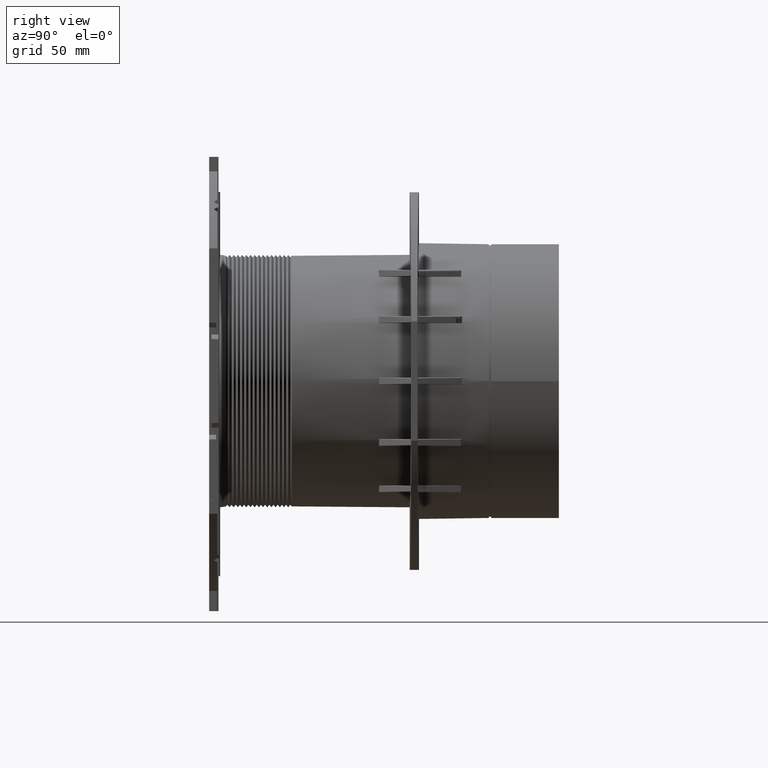
[diagram: clean part render]
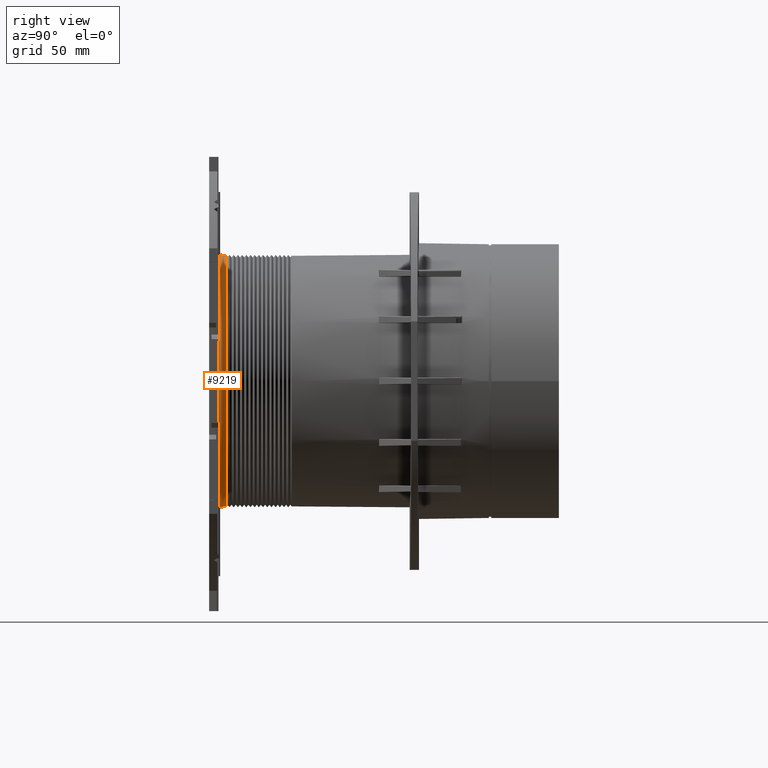
[diagram: same view with one face highlighted and labeled with its STEP entity id]
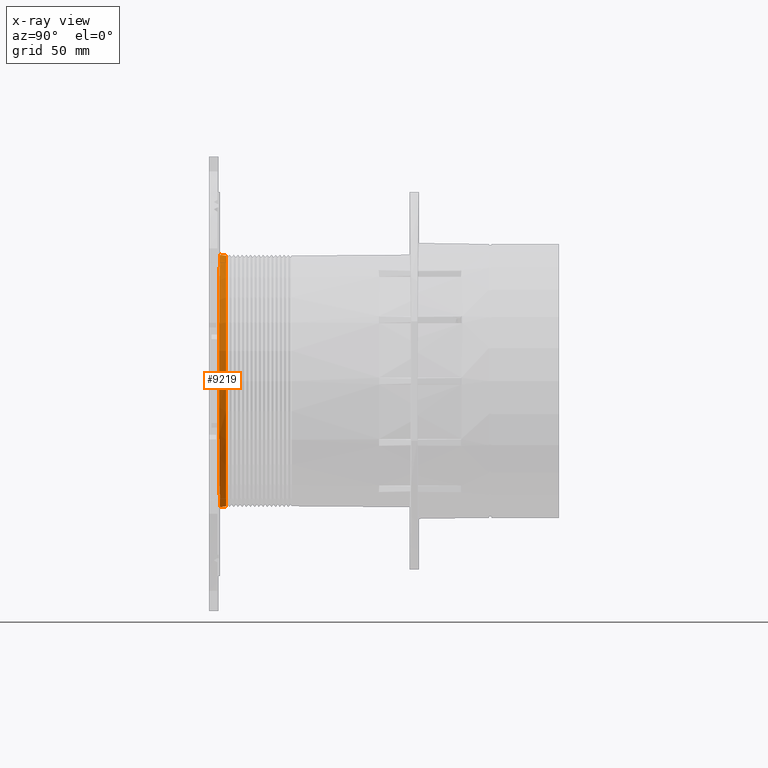
[diagram: x-ray of the same camera — body ghosted, the highlighted face saturated]
A machine part, right view. The second image highlights one B-rep face of the part: STEP entity #9219.
The next image is the same camera in x-ray: the body ghosted, the highlighted face saturated — about 0% of this face is hidden behind the body in this view.
In plain terms, the highlighted cylindrical surface (bore or boss wall) has radius 54.15 mm, axis along (0, -1, 0).
Its self-contained STEP definition (entity closure, byte-faithful):
#230=ELLIPSE('',#9905,54.1520619445877,54.15);
#231=ELLIPSE('',#9906,54.1520619445877,54.15);
#232=ELLIPSE('',#9909,54.1520619445877,54.15);
#448=CYLINDRICAL_SURFACE('',#9904,54.15);
#573=CIRCLE('',#9907,54.15);
#574=CIRCLE('',#9908,54.15);
#802=FACE_OUTER_BOUND('',#1311,.T.);
#1311=EDGE_LOOP('',(#6726,#6727,#6728,#6729,#6730,#6731,#6732));
#2134=LINE('',#16641,#3001);
#3001=VECTOR('',#11434,54.15);
#4061=VERTEX_POINT('',#16635);
#4062=VERTEX_POINT('',#16636);
#4063=VERTEX_POINT('',#16638);
#4064=VERTEX_POINT('',#16640);
#4065=VERTEX_POINT('',#16642);
#5067=EDGE_CURVE('',#4061,#4062,#230,.T.);
#5068=EDGE_CURVE('',#4061,#4063,#231,.T.);
#5069=EDGE_CURVE('',#4063,#4064,#2134,.T.);
#5070=EDGE_CURVE('',#4064,#4065,#573,.T.);
#5071=EDGE_CURVE('',#4065,#4064,#574,.T.);
#5072=EDGE_CURVE('',#4063,#4062,#232,.T.);
#6726=ORIENTED_EDGE('',*,*,#5067,.F.);
#6727=ORIENTED_EDGE('',*,*,#5068,.T.);
#6728=ORIENTED_EDGE('',*,*,#5069,.T.);
#6729=ORIENTED_EDGE('',*,*,#5070,.T.);
#6730=ORIENTED_EDGE('',*,*,#5071,.T.);
#6731=ORIENTED_EDGE('',*,*,#5069,.F.);
#6732=ORIENTED_EDGE('',*,*,#5072,.T.);
#9219=ADVANCED_FACE('',(#802),#448,.T.);
#9904=AXIS2_PLACEMENT_3D('',#16634,#11428,#11429);
#9905=AXIS2_PLACEMENT_3D('',#16637,#11430,#11431);
#9906=AXIS2_PLACEMENT_3D('',#16639,#11432,#11433);
#9907=AXIS2_PLACEMENT_3D('',#16643,#11435,#11436);
#9908=AXIS2_PLACEMENT_3D('',#16644,#11437,#11438);
#9909=AXIS2_PLACEMENT_3D('',#16645,#11439,#11440);
#11428=DIRECTION('center_axis',(0.,-1.,0.));
#11429=DIRECTION('ref_axis',(1.,0.,0.));
#11430=DIRECTION('center_axis',(-0.00872653549837393,-0.999961923064171,
0.));
#11431=DIRECTION('ref_axis',(0.999961923064171,-0.00872653549837393,0.));
#11432=DIRECTION('center_axis',(-0.00872653549837393,0.999961923064171,
0.));
#11433=DIRECTION('ref_axis',(0.999961923064171,0.00872653549837393,0.));
#11434=DIRECTION('',(0.,1.,0.));
#11435=DIRECTION('center_axis',(0.,-1.,0.));
#11436=DIRECTION('ref_axis',(1.,0.,0.));
#11437=DIRECTION('center_axis',(0.,-1.,0.));
#11438=DIRECTION('ref_axis',(1.,0.,0.));
#11439=DIRECTION('center_axis',(-0.00872653549837393,0.999961923064171,
0.));
#11440=DIRECTION('ref_axis',(0.999961923064171,0.00872653549837393,0.));
#16634=CARTESIAN_POINT('Origin',(0.,0.,0.));
#16635=CARTESIAN_POINT('',(-2.88022888258209E-15,-83.7913783353903,-54.15));
#16636=CARTESIAN_POINT('',(-1.41701024568571E-14,-83.7913783353903,54.15));
#16637=CARTESIAN_POINT('Origin',(0.,-83.7913783353903,0.));
#16638=CARTESIAN_POINT('',(-54.15,-84.26393822626,-6.63146241738292E-15));
#16639=CARTESIAN_POINT('Origin',(0.,-83.7913783353903,0.));
#16640=CARTESIAN_POINT('',(-54.15,-81.272627015665,-6.63146241738292E-15));
#16641=CARTESIAN_POINT('',(-54.15,0.,-6.63146241738292E-15));
#16642=CARTESIAN_POINT('',(54.15,-81.272627015665,0.));
#16643=CARTESIAN_POINT('Origin',(0.,-81.272627015665,0.));
#16644=CARTESIAN_POINT('Origin',(0.,-81.272627015665,0.));
#16645=CARTESIAN_POINT('Origin',(0.,-83.7913783353903,0.));